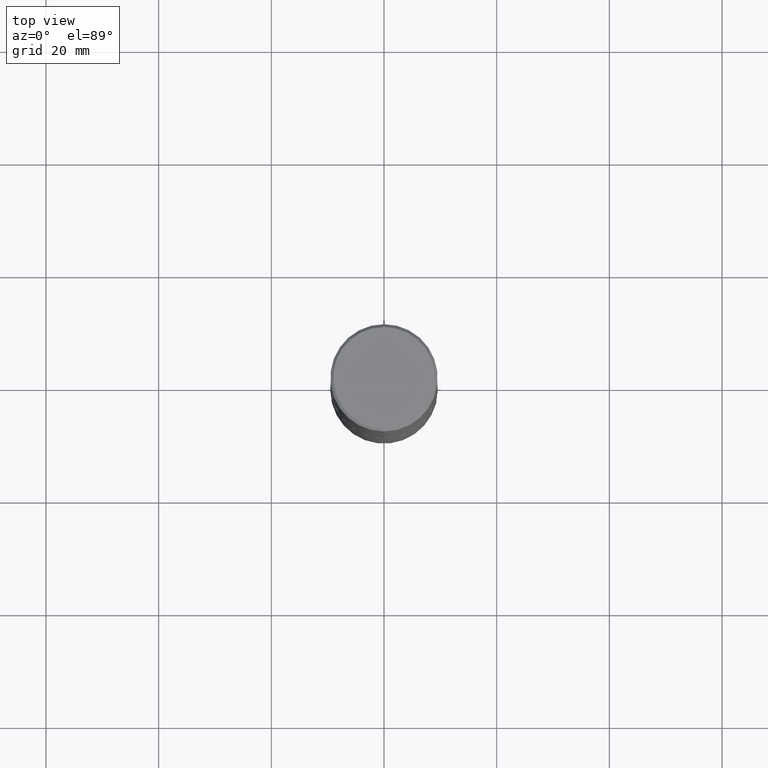
[diagram: clean part render]
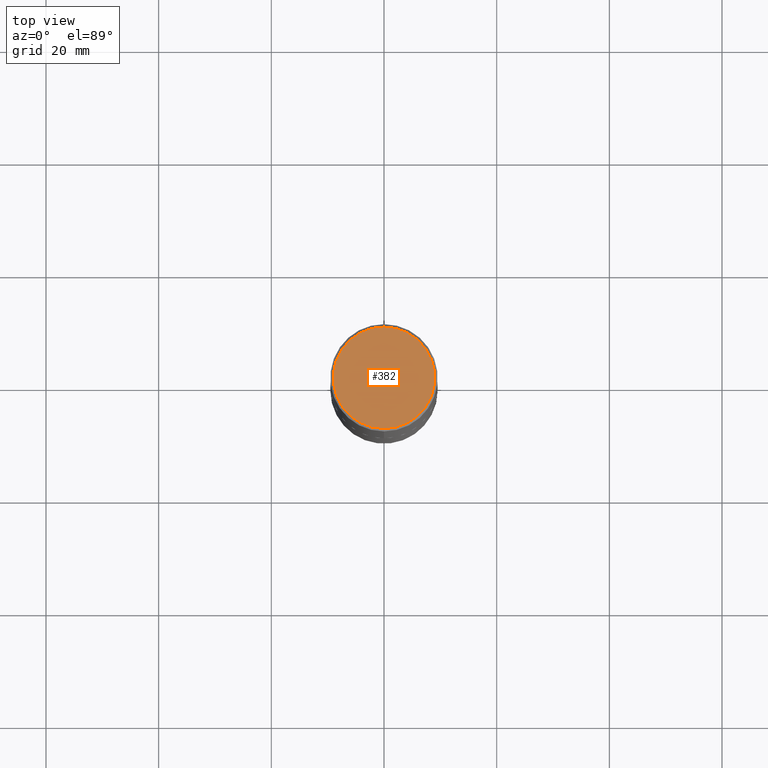
[diagram: same view with one face highlighted and labeled with its STEP entity id]
A machine part, top view. The second image highlights one B-rep face of the part: STEP entity #382.
In plain terms, the highlighted planar face has unit normal (0, -0, -1).
Its self-contained STEP definition (entity closure, byte-faithful):
#36 = EDGE_LOOP ( 'NONE', ( #76, #331 ) ) ;
#47 = CIRCLE ( 'NONE', #109, 0.3549999999999999822 ) ;
#48 = EDGE_CURVE ( 'NONE', #118, #391, #47, .T. ) ;
#49 = CARTESIAN_POINT ( 'NONE',  ( 2.478951750578624209E-15, 0.3549999999999999822, -1.215853765202481601E-15 ) ) ;
#76 = ORIENTED_EDGE ( 'NONE', *, *, #214, .T. ) ;
#92 = CARTESIAN_POINT ( 'NONE',  ( -1.141397163745304909E-45, 1.628849886601155835E-31, 4.666305460853910467E-17 ) ) ;
#109 = AXIS2_PLACEMENT_3D ( 'NONE', #92, #350, #308 ) ;
#118 = VERTEX_POINT ( 'NONE', #188 ) ;
#151 = PLANE ( 'NONE',  #393 ) ;
#180 = DIRECTION ( 'NONE',  ( 6.982962677686265922E-15, 1.000000000000000000, -3.490662795793665557E-15 ) ) ;
#181 = CIRCLE ( 'NONE', #286, 0.3549999999999999822 ) ;
#188 = CARTESIAN_POINT ( 'NONE',  ( -2.504081769186608216E-15, -0.3549999999999999822, 1.285848347115290366E-15 ) ) ;
#207 = CARTESIAN_POINT ( 'NONE',  ( -1.141397163745304909E-45, 1.628849886601155835E-31, 4.666305460853910467E-17 ) ) ;
#214 = EDGE_CURVE ( 'NONE', #391, #118, #181, .T. ) ;
#228 = DIRECTION ( 'NONE',  ( -2.446040391741596606E-29, 3.490662795793665557E-15, 1.000000000000000000 ) ) ;
#270 = FACE_OUTER_BOUND ( 'NONE', #36, .T. ) ;
#286 = AXIS2_PLACEMENT_3D ( 'NONE', #207, #228, #352 ) ;
#308 = DIRECTION ( 'NONE',  ( -6.982962677686265922E-15, -1.000000000000000000, 3.490662795793665557E-15 ) ) ;
#331 = ORIENTED_EDGE ( 'NONE', *, *, #48, .T. ) ;
#350 = DIRECTION ( 'NONE',  ( -2.446040391741596606E-29, 3.490662795793665557E-15, 1.000000000000000000 ) ) ;
#352 = DIRECTION ( 'NONE',  ( -6.982962677686265922E-15, -1.000000000000000000, 3.490662795793665557E-15 ) ) ;
#367 = DIRECTION ( 'NONE',  ( 2.446040391741596045E-29, -3.490662795793665557E-15, -1.000000000000000000 ) ) ;
#382 = ADVANCED_FACE ( 'NONE', ( #270 ), #151, .F. ) ;
#391 = VERTEX_POINT ( 'NONE', #399 ) ;
#393 = AXIS2_PLACEMENT_3D ( 'NONE', #49, #367, #180 ) ;
#399 = CARTESIAN_POINT ( 'NONE',  ( 2.548781377355487113E-15, 0.3549999999999999822, -1.192522237898212341E-15 ) ) ;